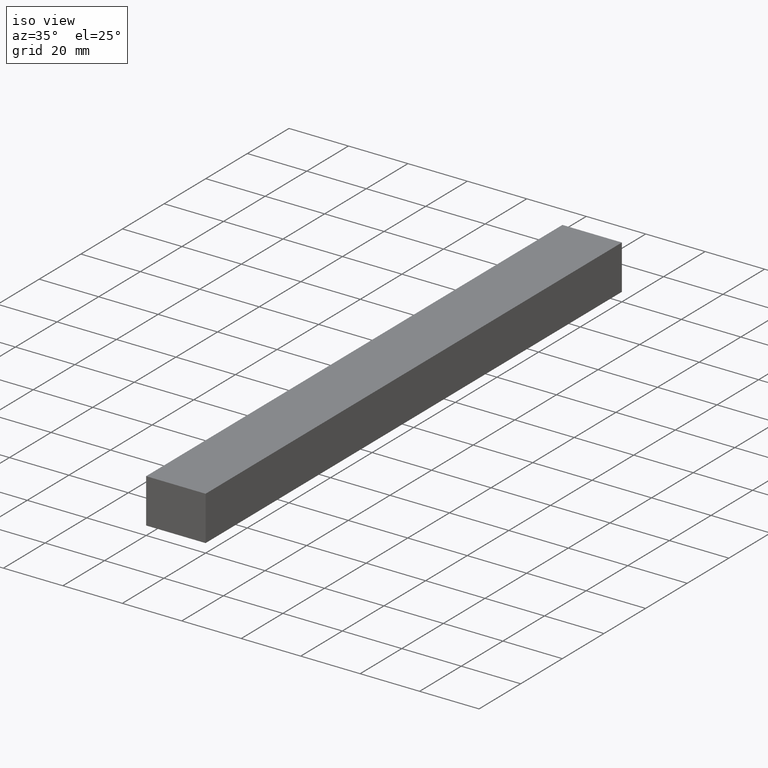
[diagram: clean part render]
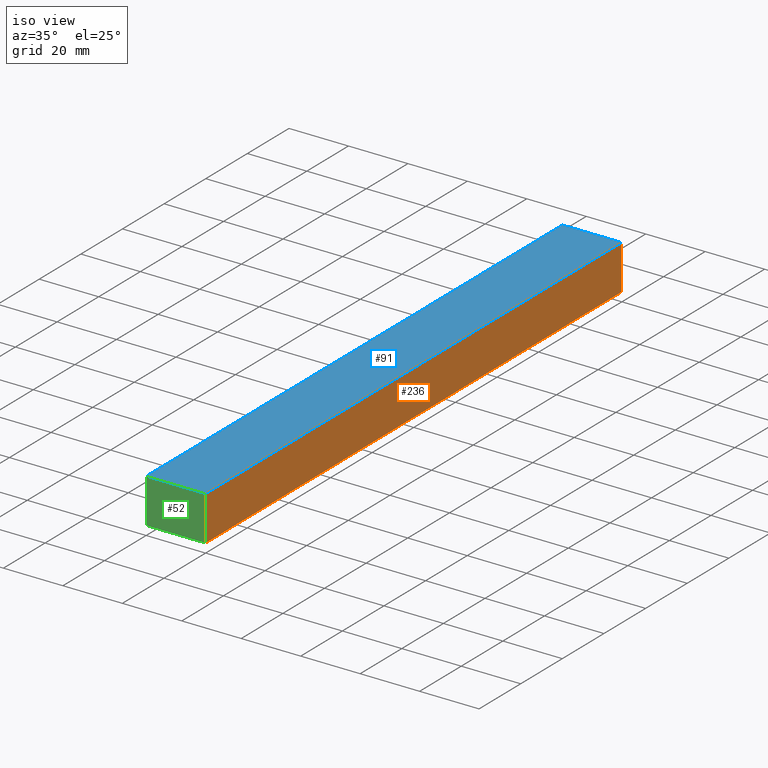
[diagram: same view with three faces highlighted in distinct colors, each labeled with its STEP entity id]
A machine part, iso view with three faces highlighted in distinct colors.
Their STEP definitions:

[orange] entity #236 — the highlighted planar face has unit normal (-1, 0, 0).
#4 = FACE_OUTER_BOUND ( 'NONE', #202, .T. ) ;
#12 = VECTOR ( 'NONE', #43, 1000.000000000000000 ) ;
#16 = ORIENTED_EDGE ( 'NONE', *, *, #104, .T. ) ;
#25 = VECTOR ( 'NONE', #71, 1000.000000000000000 ) ;
#28 = AXIS2_PLACEMENT_3D ( 'NONE', #115, #233, #228 ) ;
#35 = LINE ( 'NONE', #189, #12 ) ;
#43 = DIRECTION ( 'NONE',  ( 0.0000000000000000000, -1.000000000000000000, 0.0000000000000000000 ) ) ;
#58 = CARTESIAN_POINT ( 'NONE',  ( 20.00000000000000000, 0.0000000000000000000, 15.00000000000000000 ) ) ;
#64 = CARTESIAN_POINT ( 'NONE',  ( 20.00000000000000000, 200.0000000000000000, 15.00000000000000000 ) ) ;
#71 = DIRECTION ( 'NONE',  ( 0.0000000000000000000, 0.0000000000000000000, -1.000000000000000000 ) ) ;
#79 = PLANE ( 'NONE',  #28 ) ;
#87 = EDGE_CURVE ( 'NONE', #167, #213, #102, .T. ) ;
#90 = LINE ( 'NONE', #220, #170 ) ;
#102 = LINE ( 'NONE', #129, #126 ) ;
#104 = EDGE_CURVE ( 'NONE', #140, #177, #35, .T. ) ;
#115 = CARTESIAN_POINT ( 'NONE',  ( 20.00000000000000000, 1000.000000000000000, 15.00000000000000000 ) ) ;
#124 = ORIENTED_EDGE ( 'NONE', *, *, #87, .F. ) ;
#126 = VECTOR ( 'NONE', #143, 1000.000000000000000 ) ;
#129 = CARTESIAN_POINT ( 'NONE',  ( 20.00000000000000000, 1000.000000000000000, 0.0000000000000000000 ) ) ;
#140 = VERTEX_POINT ( 'NONE', #64 ) ;
#143 = DIRECTION ( 'NONE',  ( 0.0000000000000000000, -1.000000000000000000, 0.0000000000000000000 ) ) ;
#167 = VERTEX_POINT ( 'NONE', #195 ) ;
#168 = EDGE_CURVE ( 'NONE', #177, #213, #90, .T. ) ;
#170 = VECTOR ( 'NONE', #208, 1000.000000000000000 ) ;
#175 = ORIENTED_EDGE ( 'NONE', *, *, #221, .F. ) ;
#177 = VERTEX_POINT ( 'NONE', #58 ) ;
#189 = CARTESIAN_POINT ( 'NONE',  ( 20.00000000000000000, 1000.000000000000000, 15.00000000000000000 ) ) ;
#190 = LINE ( 'NONE', #196, #25 ) ;
#193 = CARTESIAN_POINT ( 'NONE',  ( 20.00000000000000000, 0.0000000000000000000, 0.0000000000000000000 ) ) ;
#195 = CARTESIAN_POINT ( 'NONE',  ( 20.00000000000000000, 200.0000000000000000, 0.0000000000000000000 ) ) ;
#196 = CARTESIAN_POINT ( 'NONE',  ( 20.00000000000000000, 200.0000000000000000, 15.00000000000000000 ) ) ;
#202 = EDGE_LOOP ( 'NONE', ( #237, #124, #175, #16 ) ) ;
#208 = DIRECTION ( 'NONE',  ( 0.0000000000000000000, 0.0000000000000000000, -1.000000000000000000 ) ) ;
#213 = VERTEX_POINT ( 'NONE', #193 ) ;
#220 = CARTESIAN_POINT ( 'NONE',  ( 20.00000000000000000, 0.0000000000000000000, 15.00000000000000000 ) ) ;
#221 = EDGE_CURVE ( 'NONE', #140, #167, #190, .T. ) ;
#228 = DIRECTION ( 'NONE',  ( 0.0000000000000000000, 0.0000000000000000000, 1.000000000000000000 ) ) ;
#233 = DIRECTION ( 'NONE',  ( -1.000000000000000000, 0.0000000000000000000, 0.0000000000000000000 ) ) ;
#236 = ADVANCED_FACE ( 'NONE', ( #4 ), #79, .F. ) ;
#237 = ORIENTED_EDGE ( 'NONE', *, *, #168, .T. ) ;

[blue] entity #91 — the highlighted planar face has unit normal (0, 0, -1).
#12 = VECTOR ( 'NONE', #43, 1000.000000000000000 ) ;
#19 = FACE_OUTER_BOUND ( 'NONE', #101, .T. ) ;
#35 = LINE ( 'NONE', #189, #12 ) ;
#41 = CARTESIAN_POINT ( 'NONE',  ( 0.0000000000000000000, 0.0000000000000000000, 15.00000000000000000 ) ) ;
#43 = DIRECTION ( 'NONE',  ( 0.0000000000000000000, -1.000000000000000000, 0.0000000000000000000 ) ) ;
#58 = CARTESIAN_POINT ( 'NONE',  ( 20.00000000000000000, 0.0000000000000000000, 15.00000000000000000 ) ) ;
#59 = LINE ( 'NONE', #61, #188 ) ;
#61 = CARTESIAN_POINT ( 'NONE',  ( 0.0000000000000000000, 200.0000000000000000, 15.00000000000000000 ) ) ;
#64 = CARTESIAN_POINT ( 'NONE',  ( 20.00000000000000000, 200.0000000000000000, 15.00000000000000000 ) ) ;
#67 = VECTOR ( 'NONE', #136, 1000.000000000000000 ) ;
#81 = AXIS2_PLACEMENT_3D ( 'NONE', #128, #92, #82 ) ;
#82 = DIRECTION ( 'NONE',  ( -1.000000000000000000, 0.0000000000000000000, 0.0000000000000000000 ) ) ;
#91 = ADVANCED_FACE ( 'NONE', ( #19 ), #94, .F. ) ;
#92 = DIRECTION ( 'NONE',  ( 0.0000000000000000000, 0.0000000000000000000, -1.000000000000000000 ) ) ;
#94 = PLANE ( 'NONE',  #81 ) ;
#101 = EDGE_LOOP ( 'NONE', ( #109, #198, #222, #234 ) ) ;
#104 = EDGE_CURVE ( 'NONE', #140, #177, #35, .T. ) ;
#106 = DIRECTION ( 'NONE',  ( 1.000000000000000000, 0.0000000000000000000, 0.0000000000000000000 ) ) ;
#109 = ORIENTED_EDGE ( 'NONE', *, *, #154, .T. ) ;
#111 = DIRECTION ( 'NONE',  ( 1.000000000000000000, 0.0000000000000000000, 0.0000000000000000000 ) ) ;
#116 = CARTESIAN_POINT ( 'NONE',  ( 0.0000000000000000000, 1000.000000000000000, 15.00000000000000000 ) ) ;
#120 = LINE ( 'NONE', #116, #67 ) ;
#128 = CARTESIAN_POINT ( 'NONE',  ( 0.0000000000000000000, 1000.000000000000000, 15.00000000000000000 ) ) ;
#136 = DIRECTION ( 'NONE',  ( 0.0000000000000000000, -1.000000000000000000, 0.0000000000000000000 ) ) ;
#140 = VERTEX_POINT ( 'NONE', #64 ) ;
#149 = VERTEX_POINT ( 'NONE', #180 ) ;
#154 = EDGE_CURVE ( 'NONE', #149, #177, #176, .T. ) ;
#157 = VERTEX_POINT ( 'NONE', #235 ) ;
#159 = VECTOR ( 'NONE', #106, 1000.000000000000000 ) ;
#176 = LINE ( 'NONE', #41, #159 ) ;
#177 = VERTEX_POINT ( 'NONE', #58 ) ;
#180 = CARTESIAN_POINT ( 'NONE',  ( 0.0000000000000000000, 0.0000000000000000000, 15.00000000000000000 ) ) ;
#188 = VECTOR ( 'NONE', #111, 1000.000000000000000 ) ;
#189 = CARTESIAN_POINT ( 'NONE',  ( 20.00000000000000000, 1000.000000000000000, 15.00000000000000000 ) ) ;
#198 = ORIENTED_EDGE ( 'NONE', *, *, #104, .F. ) ;
#222 = ORIENTED_EDGE ( 'NONE', *, *, #238, .F. ) ;
#223 = EDGE_CURVE ( 'NONE', #157, #149, #120, .T. ) ;
#234 = ORIENTED_EDGE ( 'NONE', *, *, #223, .T. ) ;
#235 = CARTESIAN_POINT ( 'NONE',  ( 0.0000000000000000000, 200.0000000000000000, 15.00000000000000000 ) ) ;
#238 = EDGE_CURVE ( 'NONE', #157, #140, #59, .T. ) ;

[green] entity #52 — the highlighted planar face has unit normal (0, 1, 0).
#7 = DIRECTION ( 'NONE',  ( -1.000000000000000000, 0.0000000000000000000, 0.0000000000000000000 ) ) ;
#10 = CARTESIAN_POINT ( 'NONE',  ( 0.0000000000000000000, 0.0000000000000000000, 0.0000000000000000000 ) ) ;
#38 = ORIENTED_EDGE ( 'NONE', *, *, #168, .F. ) ;
#40 = EDGE_CURVE ( 'NONE', #178, #149, #72, .T. ) ;
#41 = CARTESIAN_POINT ( 'NONE',  ( 0.0000000000000000000, 0.0000000000000000000, 15.00000000000000000 ) ) ;
#42 = LINE ( 'NONE', #227, #181 ) ;
#52 = ADVANCED_FACE ( 'NONE', ( #134 ), #147, .F. ) ;
#58 = CARTESIAN_POINT ( 'NONE',  ( 20.00000000000000000, 0.0000000000000000000, 15.00000000000000000 ) ) ;
#72 = LINE ( 'NONE', #169, #164 ) ;
#90 = LINE ( 'NONE', #220, #170 ) ;
#96 = ORIENTED_EDGE ( 'NONE', *, *, #40, .F. ) ;
#106 = DIRECTION ( 'NONE',  ( 1.000000000000000000, 0.0000000000000000000, 0.0000000000000000000 ) ) ;
#107 = AXIS2_PLACEMENT_3D ( 'NONE', #148, #132, #130 ) ;
#118 = ORIENTED_EDGE ( 'NONE', *, *, #212, .F. ) ;
#130 = DIRECTION ( 'NONE',  ( 1.000000000000000000, 0.0000000000000000000, 0.0000000000000000000 ) ) ;
#132 = DIRECTION ( 'NONE',  ( -0.0000000000000000000, 1.000000000000000000, 0.0000000000000000000 ) ) ;
#134 = FACE_OUTER_BOUND ( 'NONE', #211, .T. ) ;
#147 = PLANE ( 'NONE',  #107 ) ;
#148 = CARTESIAN_POINT ( 'NONE',  ( 0.0000000000000000000, 0.0000000000000000000, 0.0000000000000000000 ) ) ;
#149 = VERTEX_POINT ( 'NONE', #180 ) ;
#154 = EDGE_CURVE ( 'NONE', #149, #177, #176, .T. ) ;
#159 = VECTOR ( 'NONE', #106, 1000.000000000000000 ) ;
#161 = ORIENTED_EDGE ( 'NONE', *, *, #154, .F. ) ;
#164 = VECTOR ( 'NONE', #207, 1000.000000000000000 ) ;
#168 = EDGE_CURVE ( 'NONE', #177, #213, #90, .T. ) ;
#169 = CARTESIAN_POINT ( 'NONE',  ( 0.0000000000000000000, 0.0000000000000000000, 0.0000000000000000000 ) ) ;
#170 = VECTOR ( 'NONE', #208, 1000.000000000000000 ) ;
#176 = LINE ( 'NONE', #41, #159 ) ;
#177 = VERTEX_POINT ( 'NONE', #58 ) ;
#178 = VERTEX_POINT ( 'NONE', #10 ) ;
#180 = CARTESIAN_POINT ( 'NONE',  ( 0.0000000000000000000, 0.0000000000000000000, 15.00000000000000000 ) ) ;
#181 = VECTOR ( 'NONE', #7, 1000.000000000000000 ) ;
#193 = CARTESIAN_POINT ( 'NONE',  ( 20.00000000000000000, 0.0000000000000000000, 0.0000000000000000000 ) ) ;
#207 = DIRECTION ( 'NONE',  ( 0.0000000000000000000, 0.0000000000000000000, 1.000000000000000000 ) ) ;
#208 = DIRECTION ( 'NONE',  ( 0.0000000000000000000, 0.0000000000000000000, -1.000000000000000000 ) ) ;
#211 = EDGE_LOOP ( 'NONE', ( #161, #96, #118, #38 ) ) ;
#212 = EDGE_CURVE ( 'NONE', #213, #178, #42, .T. ) ;
#213 = VERTEX_POINT ( 'NONE', #193 ) ;
#220 = CARTESIAN_POINT ( 'NONE',  ( 20.00000000000000000, 0.0000000000000000000, 15.00000000000000000 ) ) ;
#227 = CARTESIAN_POINT ( 'NONE',  ( 20.00000000000000000, 0.0000000000000000000, 0.0000000000000000000 ) ) ;